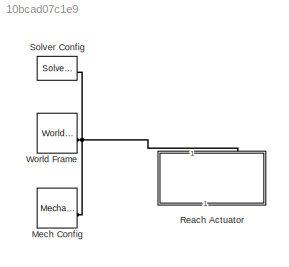
MODEL slx_10bcad07c1e9
KIND model
CONFIG EnableMultiTasking = on
CONFIG SolverName = ode45
WORKSPACE source: mxarray member
WORKSPACE cylinderGray = [0.6 0.6 0.6]
WORKSPACE darkOrange = [0.8 0.5 0]
WORKSPACE glassBlue = [0.2 0.2 1]
WORKSPACE gray = [0.3 0.3 0.3]
WORKSPACE orange = [0.8 0.65 0]
WORKSPACE pistonGray = [0.4 0.4 0.4]
WORKSPACE rhoGlass = 2500
WORKSPACE rhoRubber = 1500
WORKSPACE rhoSteel = 7800
WORKSPACE tireBlack = [0.1 0.1 0.1]
WORKSPACE wheelGray = [0.6 0.6 0.6]
WORKSPACE yellow = [0.8 0.8 0]
BLOCK [Reference] Mech Config  REF=sm_lib/Utilities/Mechanism
Configuration
  SourceBlock = sm_lib/Utilities/Mechanism\nConfiguration
  SourceType = Mechanism\nConfiguration
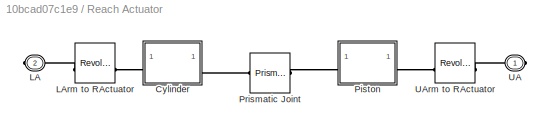
BLOCK [SubSystem] Reach Actuator
  NameLocation = left
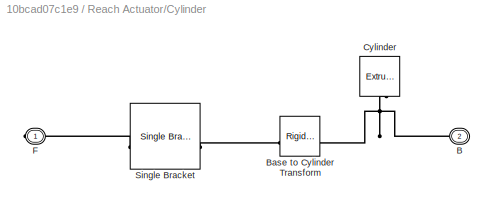
BLOCK [SubSystem] Reach Actuator/Cylinder
BLOCK [PMIOPort] Reach Actuator/Cylinder/B
  NameLocation = top
  Port = 2
  Side = Left
BLOCK [Reference] Reach Actuator/Cylinder/Base to Cylinder Transform  REF=sm_lib/Frames and
Transforms/Rigid
Transform
  SourceBlock = sm_lib/Frames and\nTransforms/Rigid\nTransform
  SourceType = Rigid\nTransform
BLOCK [Reference] Reach Actuator/Cylinder/Cylinder  REF=sm_lib/Body Elements/Extruded Solid
  NameLocation = left
  SourceBlock = sm_lib/Body Elements/Extruded Solid
  SourceType = Extruded Solid
BLOCK [PMIOPort] Reach Actuator/Cylinder/F
  NameLocation = top
  Side = Right
BLOCK [Reference] Reach Actuator/Cylinder/Single Bracket  REF=sm_backhoe_lib/Single Bracket
  NameLocation = top
  SourceBlock = sm_backhoe_lib/Single Bracket
  SourceType = Single Bracket
BLOCK [PMIOPort] Reach Actuator/LA
  NameLocation = top
  Port = 2
  Side = Right
BLOCK [Reference] Reach Actuator/LArm to RActuator  REF=sm_lib/Joints/Revolute Joint
  SourceBlock = sm_lib/Joints/Revolute Joint
  SourceType = Revolute Joint
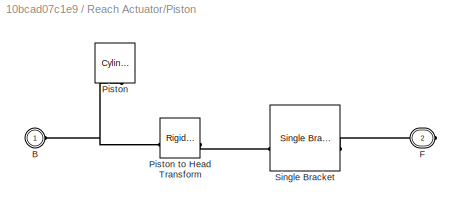
BLOCK [SubSystem] Reach Actuator/Piston
BLOCK [PMIOPort] Reach Actuator/Piston/B
  NameLocation = top
  Side = Left
BLOCK [PMIOPort] Reach Actuator/Piston/F
  NameLocation = top
  Port = 2
  Side = Right
BLOCK [Reference] Reach Actuator/Piston/Piston  REF=sm_lib/Body Elements/Cylindrical Solid
  NameLocation = left
  SourceBlock = sm_lib/Body Elements/Cylindrical Solid
  SourceType = Cylindrical Solid
BLOCK [Reference] Reach Actuator/Piston/Piston to Head Transform  REF=sm_lib/Frames and
Transforms/Rigid
Transform
  SourceBlock = sm_lib/Frames and\nTransforms/Rigid\nTransform
  SourceType = Rigid\nTransform
BLOCK [Reference] Reach Actuator/Piston/Single Bracket  REF=sm_backhoe_lib/Single Bracket
  SourceBlock = sm_backhoe_lib/Single Bracket
  SourceType = Single Bracket
BLOCK [Reference] Reach Actuator/Prismatic  Joint  REF=sm_lib/Joints/Prismatic
Joint
  SourceBlock = sm_lib/Joints/Prismatic\nJoint
  SourceType = Prismatic\nJoint
BLOCK [PMIOPort] Reach Actuator/UA
  NameLocation = top
  Side = Right
BLOCK [Reference] Reach Actuator/UArm to RActuator  REF=sm_lib/Joints/Revolute Joint
  SourceBlock = sm_lib/Joints/Revolute Joint
  SourceType = Revolute Joint
BLOCK [Reference] Solver Config  REF=nesl_utility/Solver
Configuration
  SourceBlock = nesl_utility/Solver\nConfiguration
  SourceType = Solver\nConfiguration
BLOCK [Reference] World Frame  REF=sm_lib/Frames and
Transforms/World Frame
  SourceBlock = sm_lib/Frames and\nTransforms/World Frame
  SourceType = World Frame
PNET net1: Mech Config:RConn1 -- Reach Actuator:RConn2 -- Solver Config:RConn1 -- World Frame:RConn1
PNET net2: Reach Actuator/Cylinder/B:RConn1 -- Reach Actuator/Cylinder/Base to Cylinder Transform:LConn1 -- Reach Actuator/Cylinder/Cylinder:RConn1
PLINE Reach Actuator/Cylinder/Base to Cylinder Transform:RConn1 -- Reach Actuator/Cylinder/Single Bracket:LConn1
PLINE Reach Actuator/Cylinder/F:RConn1 -- Reach Actuator/Cylinder/Single Bracket:RConn1
PLINE Reach Actuator/Cylinder:LConn1 -- Reach Actuator/Prismatic  Joint:LConn1
PLINE Reach Actuator/Cylinder:RConn1 -- Reach Actuator/LArm to RActuator:RConn1
PLINE Reach Actuator/LA:RConn1 -- Reach Actuator/LArm to RActuator:LConn1
PNET net3: Reach Actuator/Piston/B:RConn1 -- Reach Actuator/Piston/Piston to Head Transform:LConn1 -- Reach Actuator/Piston/Piston:RConn1
PLINE Reach Actuator/Piston/F:RConn1 -- Reach Actuator/Piston/Single Bracket:RConn1
PLINE Reach Actuator/Piston/Piston to Head Transform:RConn1 -- Reach Actuator/Piston/Single Bracket:LConn1
PLINE Reach Actuator/Piston:LConn1 -- Reach Actuator/Prismatic  Joint:RConn1
PLINE Reach Actuator/Piston:RConn1 -- Reach Actuator/UArm to RActuator:LConn1
PLINE Reach Actuator/UA:RConn1 -- Reach Actuator/UArm to RActuator:RConn1
note: PNET lines group multi-terminal physical nets as a canonical sorted terminal list (undirected conserving connections); 2-terminal nets keep the pairwise PLINE form
